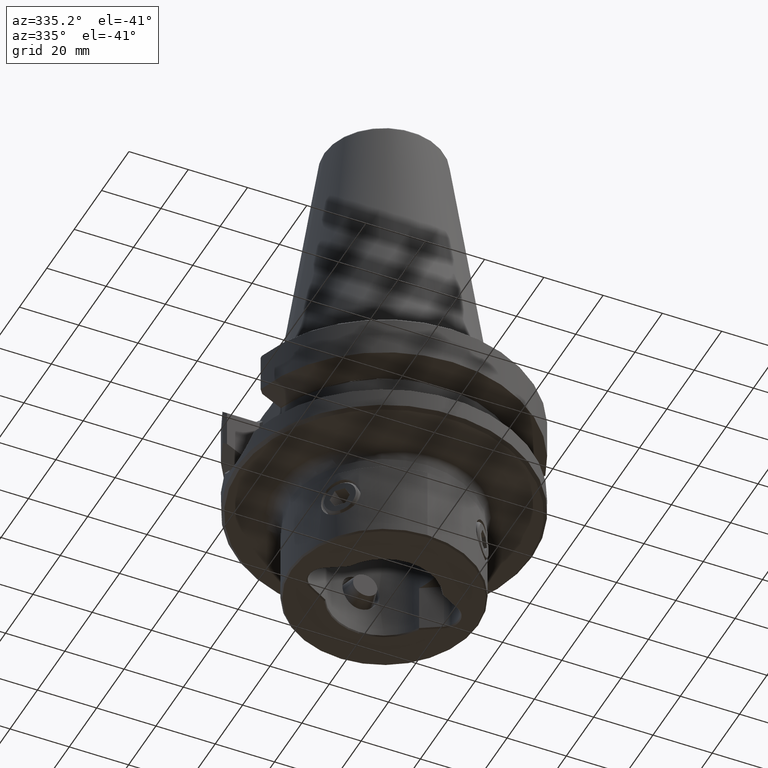
[diagram: clean part render]
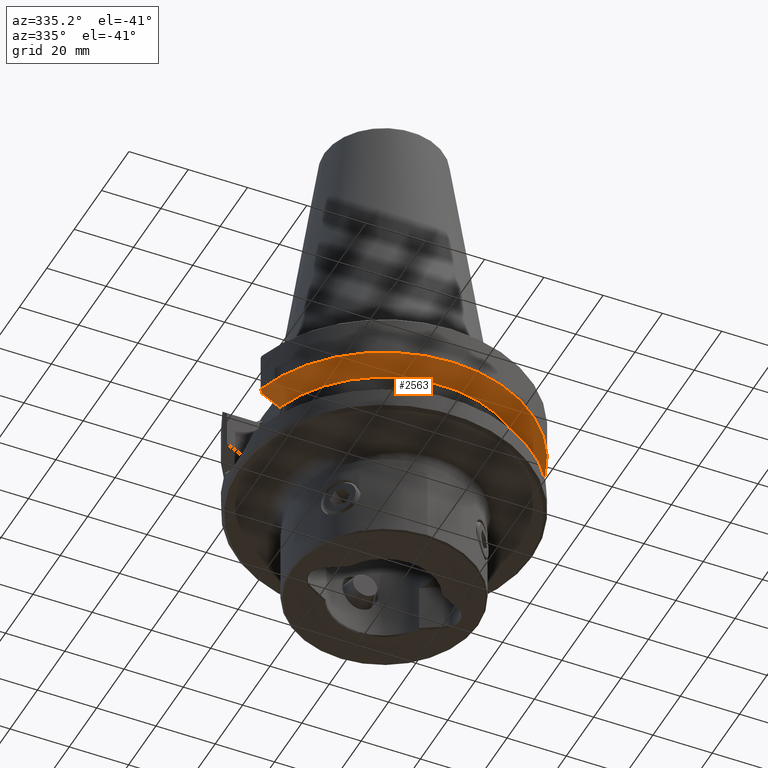
[diagram: same view with one face highlighted and labeled with its STEP entity id]
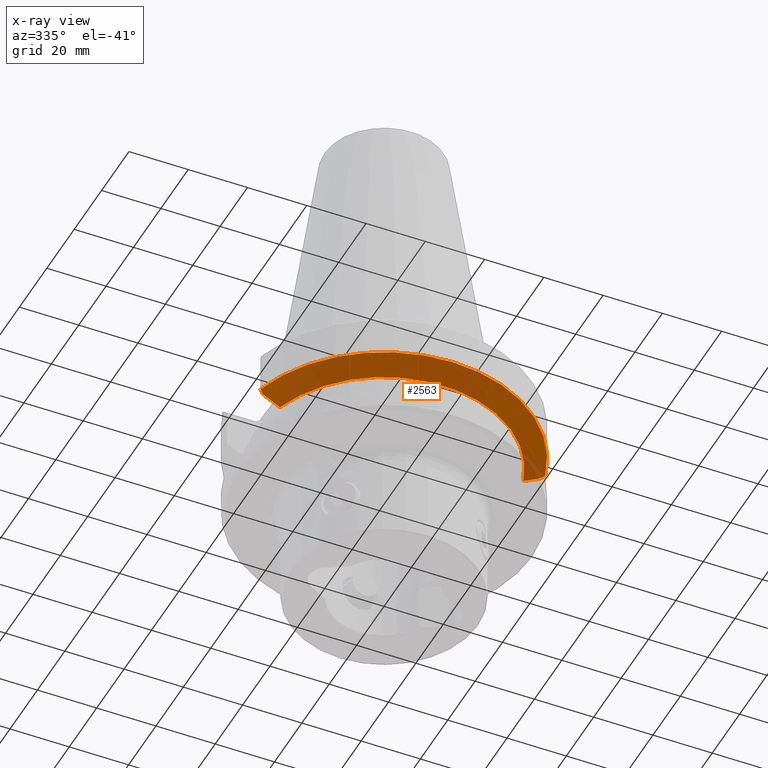
[diagram: x-ray of the same camera — body ghosted, the highlighted face saturated]
A machine part, auxiliary view. The second image highlights one B-rep face of the part: STEP entity #2563.
The next image is the same camera in x-ray: the body ghosted, the highlighted face saturated — about 4% of this face is hidden behind the body in this view.
In plain terms, the highlighted conical surface has half-angle 60 deg.
Its self-contained STEP definition (entity closure, byte-faithful):
#1421=EDGE_CURVE('NONE',#2373,#3201,#3897,.F.);
#1435=EDGE_CURVE('NONE',#3257,#1727,#3912,.F.);
#1447=EDGE_CURVE('NONE',#2159,#3201,#3924,.F.);
#1727=VERTEX_POINT('NONE',#4234);
#2159=VERTEX_POINT('NONE',#4717);
#2231=EDGE_CURVE('NONE',#3257,#3179,#4798,.T.);
#2373=VERTEX_POINT('NONE',#4953);
#2497=EDGE_CURVE('NONE',#2159,#1727,#5095,.F.);
#2563=ADVANCED_FACE('NONE',(#5167),#5168,.T.);
#3179=VERTEX_POINT('NONE',#5859);
#3201=VERTEX_POINT('NONE',#5884);
#3257=VERTEX_POINT('NONE',#5943);
#3435=EDGE_CURVE('NONE',#3179,#2373,#6134,.F.);
#3897=(B_SPLINE_CURVE(2,(#6723,#6724,#6725),.UNSPECIFIED.,.F.,.F.)B_SPLINE_CURVE_WITH_KNOTS((3,3),(2.68439191236051,4.26588809405945),.UNSPECIFIED.)RATIONAL_B_SPLINE_CURVE((1.00099636093401,1.00111565647804,1.0010296879899))BOUNDED_CURVE()REPRESENTATION_ITEM('')GEOMETRIC_REPRESENTATION_ITEM()CURVE());
#3912=(B_SPLINE_CURVE(2,(#6750,#6751,#6752),.UNSPECIFIED.,.F.,.F.)B_SPLINE_CURVE_WITH_KNOTS((3,3),(2.37084295046115,9.18859715607535),.UNSPECIFIED.)RATIONAL_B_SPLINE_CURVE((1.00210481420377,1.00438995710334,1.00241204372774))BOUNDED_CURVE()REPRESENTATION_ITEM('')GEOMETRIC_REPRESENTATION_ITEM()CURVE());
#3924=CIRCLE('',#6775,50.0);
#4234=CARTESIAN_POINT('',(-47.04349592,-12.85,-16.3875985962219));
#4717=CARTESIAN_POINT('',(-48.0434959182627,-13.8499999982627,-15.6756826167862));
#4798=CIRCLE('',#8329,43.0296778264911);
#4953=CARTESIAN_POINT('',(47.0434959177618,-12.85,-16.3875985974684));
#5095=(B_SPLINE_CURVE(2,(#9076,#9077,#9078),.UNSPECIFIED.,.F.,.F.)B_SPLINE_CURVE_WITH_KNOTS((3,3),(2.94116661885814,4.52266279780634),.UNSPECIFIED.)RATIONAL_B_SPLINE_CURVE((1.00102968798924,1.00111565647706,1.00099636093343))BOUNDED_CURVE()REPRESENTATION_ITEM('')GEOMETRIC_REPRESENTATION_ITEM()CURVE());
#5167=FACE_OUTER_BOUND('',#9191,.T.);
#5168=CONICAL_SURFACE('',#9192,60.0,1.0471975511966);
#5859=CARTESIAN_POINT('',(41.0661743269521,-12.85,-19.7));
#5884=CARTESIAN_POINT('',(48.0434959177619,-13.85,-15.6756826167862));
#5943=CARTESIAN_POINT('',(-41.0661743269521,-12.85,-19.7));
#6134=(B_SPLINE_CURVE(2,(#10945,#10946,#10947),.UNSPECIFIED.,.F.,.F.)B_SPLINE_CURVE_WITH_KNOTS((3,3),(2.37084295052889,9.18859715358675),.UNSPECIFIED.)RATIONAL_B_SPLINE_CURVE((1.00210481420254,1.00438995709963,1.00241204372621))BOUNDED_CURVE()REPRESENTATION_ITEM('')GEOMETRIC_REPRESENTATION_ITEM()CURVE());
#6723=CARTESIAN_POINT('',(48.0434959177619,-13.85,-15.6756826167862));
#6724=CARTESIAN_POINT('',(47.5372535717291,-13.3437576539672,-16.0374861902225));
#6725=CARTESIAN_POINT('',(47.0434959177618,-12.85,-16.3875985974684));
#6750=CARTESIAN_POINT('',(-47.0434959199998,-12.85,-16.387598596222));
#6751=CARTESIAN_POINT('',(-43.8680451316013,-12.85,-18.156155231234));
#6752=CARTESIAN_POINT('',(-41.0661743269521,-12.85,-19.7));
#6775=AXIS2_PLACEMENT_3D('',#11688,#11689,#11690);
#8329=AXIS2_PLACEMENT_3D('',#12754,#12755,#12756);
#9076=CARTESIAN_POINT('',(-47.04349592,-12.85,-16.3875985962219));
#9077=CARTESIAN_POINT('',(-47.5372535731205,-13.3437576531205,-16.0374861895788));
#9078=CARTESIAN_POINT('',(-48.0434959182627,-13.8499999982627,-15.6756826167862));
#9191=EDGE_LOOP('',(#13206,#13207,#13208,#13209,#13210,#13211));
#9192=AXIS2_PLACEMENT_3D('',#13212,#13213,#13214);
#10945=CARTESIAN_POINT('',(47.0434959177616,-12.85,-16.3875985974686));
#10946=CARTESIAN_POINT('',(43.8680451306242,-12.85,-18.1561552317723));
#10947=CARTESIAN_POINT('',(41.0661743269521,-12.85,-19.7));
#11688=CARTESIAN_POINT('',(2.17543797098405E-016,-1.95789417388564E-015,-15.6756826167862));
#11689=DIRECTION('',(1.38777878078145E-017,-1.2490009027033E-016,-1.0));
#11690=DIRECTION('',(-1.0,-1.54074395550979E-032,-1.38777878078145E-017));
#12754=CARTESIAN_POINT('',(2.73392419813945E-016,-2.4605317783255E-015,-19.7));
#12755=DIRECTION('',(-1.38777878078145E-017,1.2490009027033E-016,1.0));
#12756=DIRECTION('',(-1.0,-1.54074395550979E-032,-1.38777878078145E-017));
#13206=ORIENTED_EDGE('',*,*,#3435,.T.);
#13207=ORIENTED_EDGE('',*,*,#1421,.T.);
#13208=ORIENTED_EDGE('',*,*,#1447,.F.);
#13209=ORIENTED_EDGE('',*,*,#2497,.T.);
#13210=ORIENTED_EDGE('',*,*,#1435,.F.);
#13211=ORIENTED_EDGE('',*,*,#2231,.T.);
#13212=CARTESIAN_POINT('',(1.37420351832423E-016,-1.23678316649181E-015,-9.90217992488999));
#13213=DIRECTION('',(-1.38777878078145E-017,1.2490009027033E-016,1.0));
#13214=DIRECTION('',(-1.0,-1.54074395550979E-032,-1.38777878078145E-017));